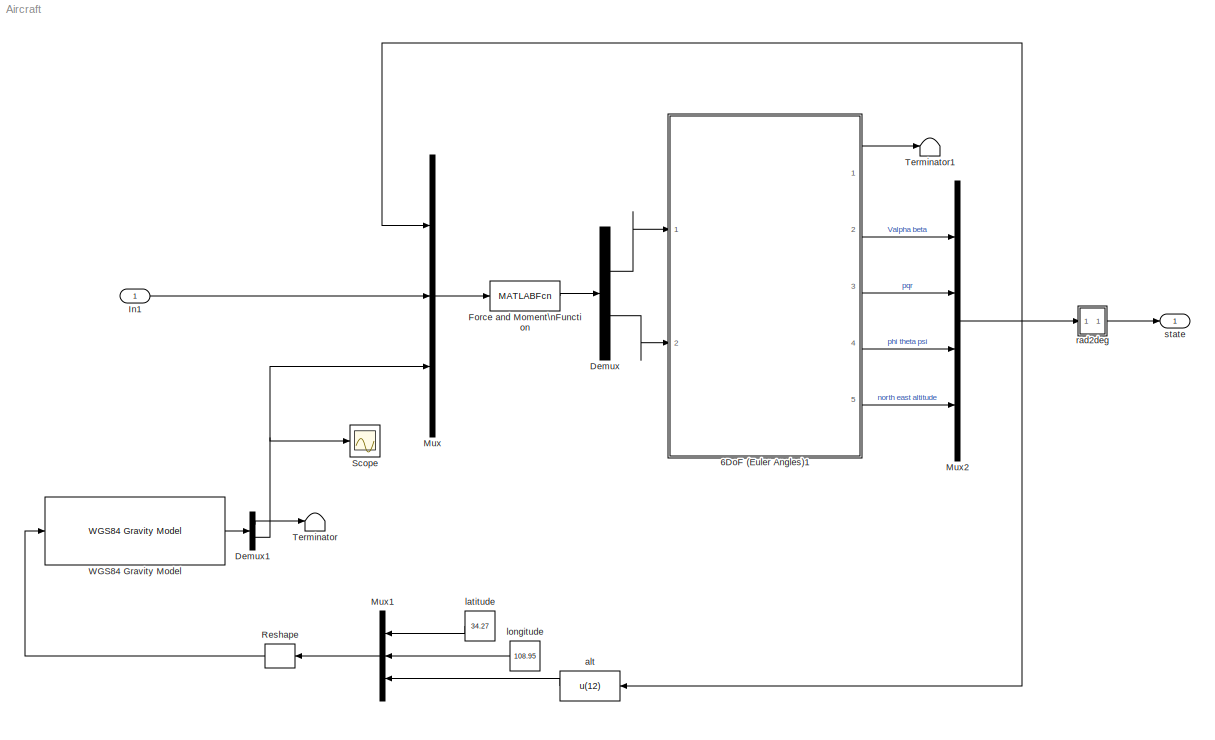
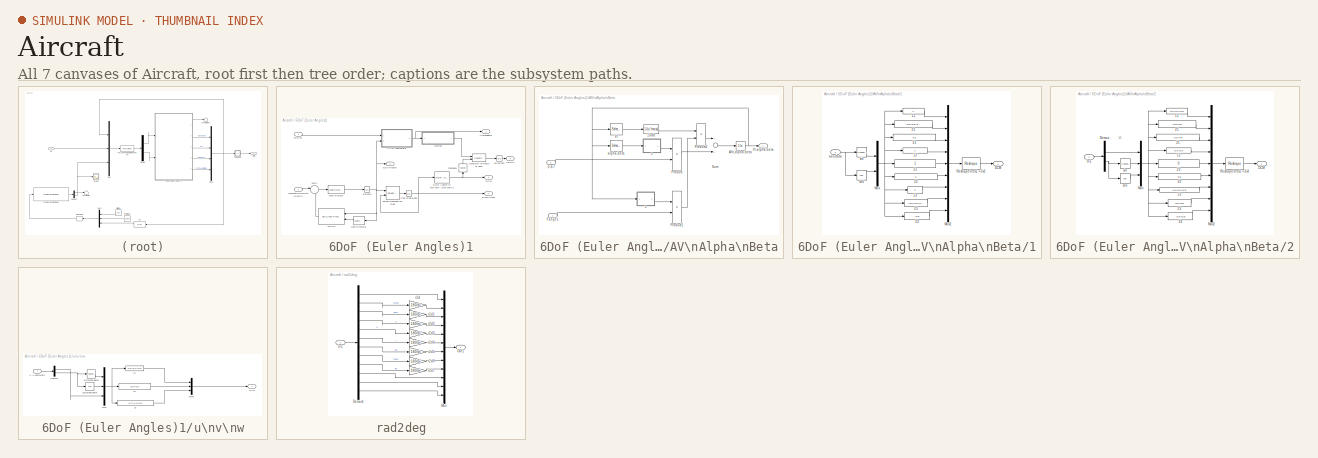
[diagram: thumbnail index - all 7 canvases of the model, root first then tree order]
MODEL Aircraft
KIND model
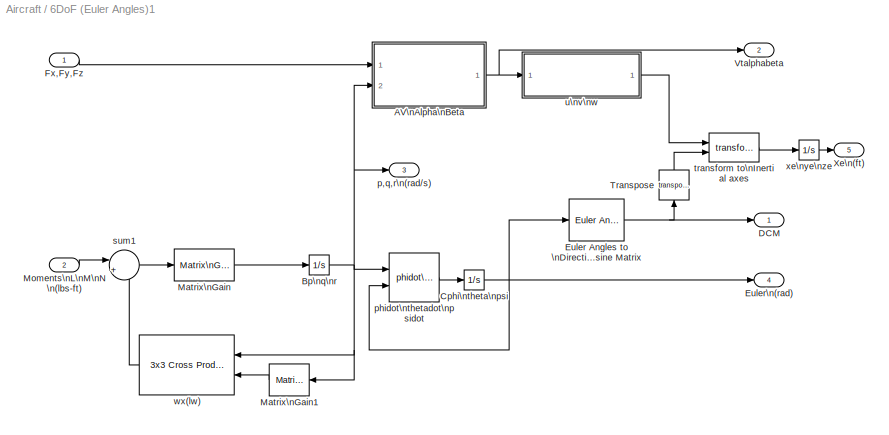
BLOCK [SubSystem] 6DoF (Euler Angles)1
  AncestorBlock = aerolib6dof/6DoF (Euler Angles)
  Ports = [2, 5]
  RequestExecContextInheritance = off
  SID = 90
  Variant = off
BLOCK [SubSystem] 6DoF (Euler Angles)1/AV\nAlpha\nBeta
  Ports = [2, 1]
  RequestExecContextInheritance = off
  SID = 90:3
  Variant = off
BLOCK [SubSystem] 6DoF (Euler Angles)1/AV\nAlpha\nBeta/1
  AncestorBlock = aerolibtransform/Euler Angles to \nDirection Cosine Matrix
  Ports = [1, 1]
  RequestExecContextInheritance = off
  SID = 90:6
  ShowPortLabels = none
  Variant = off
BLOCK [Fcn] 6DoF (Euler Angles)1/AV\nAlpha\nBeta/1//mVt
  Expr = 1/(u*mass)
  SID = 90:7
BLOCK [Fcn] 6DoF (Euler Angles)1/AV\nAlpha\nBeta/1/11
  Expr = 0
  SID = 90:6:2
BLOCK [Fcn] 6DoF (Euler Angles)1/AV\nAlpha\nBeta/1/12
  Expr = 0
  SID = 90:6:3
BLOCK [Fcn] 6DoF (Euler Angles)1/AV\nAlpha\nBeta/1/13
  Expr = 0
  SID = 90:6:4
BLOCK [Fcn] 6DoF (Euler Angles)1/AV\nAlpha\nBeta/1/21
  Expr = -u(2)*u(3)/u(4)
  SID = 90:6:5
BLOCK [Fcn] 6DoF (Euler Angles)1/AV\nAlpha\nBeta/1/22
  Expr = 1
  SID = 90:6:6
BLOCK [Fcn] 6DoF (Euler Angles)1/AV\nAlpha\nBeta/1/23
  Expr = -u(1)*u(2)/u(4)
  SID = 90:6:7
BLOCK [Fcn] 6DoF (Euler Angles)1/AV\nAlpha\nBeta/1/31
  Expr = u(1)
  SID = 90:6:8
BLOCK [Fcn] 6DoF (Euler Angles)1/AV\nAlpha\nBeta/1/32
  Expr = 0
  SID = 90:6:9
BLOCK [Fcn] 6DoF (Euler Angles)1/AV\nAlpha\nBeta/1/33
  Expr = -u(3)
  SID = 90:6:10
BLOCK [Outport] 6DoF (Euler Angles)1/AV\nAlpha\nBeta/1/DCM
  IconDisplay = Port number
  InitialOutput = 0
  SID = 90:6:16
BLOCK [Mux] 6DoF (Euler Angles)1/AV\nAlpha\nBeta/1/Mux
  DisplayOption = bar
  Inputs = 2
  Ports = [2, 1]
  SID = 90:6:11
BLOCK [Mux] 6DoF (Euler Angles)1/AV\nAlpha\nBeta/1/Mux2
  DisplayOption = bar
  Inputs = 9
  Ports = [9, 1]
  SID = 90:6:12
BLOCK [Reshape] 6DoF (Euler Angles)1/AV\nAlpha\nBeta/1/Reshape\n9x1->3x3
  OutputDimensionality = Customize
  OutputDimensions = [3,3]
  Ports = [1, 1]
  SID = 90:6:13
BLOCK [Inport] 6DoF (Euler Angles)1/AV\nAlpha\nBeta/1/aeodata
  IconDisplay = Port number
  SID = 90:6:1
BLOCK [Trigonometry] 6DoF (Euler Angles)1/AV\nAlpha\nBeta/1/cos
  Operator = cos
  Ports = [1, 1]
  SID = 90:6:14
BLOCK [Trigonometry] 6DoF (Euler Angles)1/AV\nAlpha\nBeta/1/sin
  Ports = [1, 1]
  SID = 90:6:15
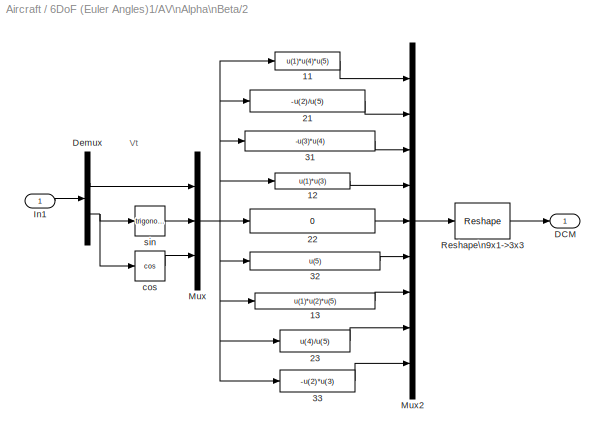
BLOCK [SubSystem] 6DoF (Euler Angles)1/AV\nAlpha\nBeta/2
  AncestorBlock = aerolibtransform/Euler Angles to \nDirection Cosine Matrix
  Ports = [1, 1]
  RequestExecContextInheritance = off
  SID = 90:8
  ShowPortLabels = none
  Variant = off
BLOCK [Fcn] 6DoF (Euler Angles)1/AV\nAlpha\nBeta/2/11
  Expr = u(1)*u(4)*u(5)
  SID = 90:8:2
BLOCK [Fcn] 6DoF (Euler Angles)1/AV\nAlpha\nBeta/2/12
  Expr = u(1)*u(3)
  SID = 90:8:3
BLOCK [Fcn] 6DoF (Euler Angles)1/AV\nAlpha\nBeta/2/13
  Expr = u(1)*u(2)*u(5)
  SID = 90:8:4
BLOCK [Fcn] 6DoF (Euler Angles)1/AV\nAlpha\nBeta/2/21
  Expr = -u(2)/u(5)
  SID = 90:8:5
BLOCK [Fcn] 6DoF (Euler Angles)1/AV\nAlpha\nBeta/2/22
  Expr = 0
  SID = 90:8:6
BLOCK [Fcn] 6DoF (Euler Angles)1/AV\nAlpha\nBeta/2/23
  Expr = u(4)/u(5)
  SID = 90:8:7
BLOCK [Fcn] 6DoF (Euler Angles)1/AV\nAlpha\nBeta/2/31
  Expr = -u(3)*u(4)
  SID = 90:8:8
BLOCK [Fcn] 6DoF (Euler Angles)1/AV\nAlpha\nBeta/2/32
  Expr = u(5)
  SID = 90:8:9
BLOCK [Fcn] 6DoF (Euler Angles)1/AV\nAlpha\nBeta/2/33
  Expr = -u(2)*u(3)
  SID = 90:8:10
BLOCK [Outport] 6DoF (Euler Angles)1/AV\nAlpha\nBeta/2/DCM
  IconDisplay = Port number
  InitialOutput = 0
  SID = 90:8:17
BLOCK [Demux] 6DoF (Euler Angles)1/AV\nAlpha\nBeta/2/Demux
  Outputs = [1 2]
  Ports = [1, 2]
  SID = 90:8:11
BLOCK [Inport] 6DoF (Euler Angles)1/AV\nAlpha\nBeta/2/In1
  IconDisplay = Port number
  SID = 90:8:1
BLOCK [Mux] 6DoF (Euler Angles)1/AV\nAlpha\nBeta/2/Mux
  DisplayOption = bar
  Inputs = [1 2 2]
  Ports = [3, 1]
  SID = 90:8:12
BLOCK [Mux] 6DoF (Euler Angles)1/AV\nAlpha\nBeta/2/Mux2
  DisplayOption = bar
  Inputs = 9
  Ports = [9, 1]
  SID = 90:8:13
BLOCK [Reshape] 6DoF (Euler Angles)1/AV\nAlpha\nBeta/2/Reshape\n9x1->3x3
  OutputDimensionality = Customize
  OutputDimensions = [3,3]
  Ports = [1, 1]
  SID = 90:8:14
BLOCK [Trigonometry] 6DoF (Euler Angles)1/AV\nAlpha\nBeta/2/cos
  Operator = cos
  Ports = [1, 1]
  SID = 90:8:15
BLOCK [Trigonometry] 6DoF (Euler Angles)1/AV\nAlpha\nBeta/2/sin
  Ports = [1, 1]
  SID = 90:8:16
BLOCK [Integrator] 6DoF (Euler Angles)1/AV\nAlpha\nBeta/AVt,alpha,beta
  InitialCondition = Vmw_0
  Ports = [1, 1]
  SID = 90:9
BLOCK [Inport] 6DoF (Euler Angles)1/AV\nAlpha\nBeta/Fx,Fy,Fz
  IconDisplay = Port number
  SID = 90:4
BLOCK [Product] 6DoF (Euler Angles)1/AV\nAlpha\nBeta/Product
  InputSameDT = off
  Multiplication = Matrix(*)
  Ports = [2, 1]
  RndMeth = Floor
  SID = 90:10
BLOCK [Product] 6DoF (Euler Angles)1/AV\nAlpha\nBeta/Product1
  InputSameDT = off
  Multiplication = Matrix(*)
  Ports = [2, 1]
  RndMeth = Floor
  SID = 90:11
BLOCK [Product] 6DoF (Euler Angles)1/AV\nAlpha\nBeta/Product2
  InputSameDT = off
  Ports = [2, 1]
  RndMeth = Floor
  SID = 90:12
BLOCK [Sum] 6DoF (Euler Angles)1/AV\nAlpha\nBeta/Sum
  InputSameDT = off
  OutDataTypeStr = Inherit: Inherit via internal rule
  Ports = [2, 1]
  SID = 90:13
BLOCK [Selector] 6DoF (Euler Angles)1/AV\nAlpha\nBeta/Vt
  IndexOptions = Index vector (dialog)
  Indices = [1]
  InputPortWidth = 3
  OutputSizes = 1
  Ports = [1, 1]
  SID = 90:14
BLOCK [Outport] 6DoF (Euler Angles)1/AV\nAlpha\nBeta/Vt,alpha,beta
  IconDisplay = Port number
  SID = 90:16
BLOCK [Selector] 6DoF (Euler Angles)1/AV\nAlpha\nBeta/alpha,beta
  IndexOptions = Index vector (dialog)
  Indices = [2 3]
  InputPortWidth = 3
  OutputSizes = 1
  Ports = [1, 1]
  SID = 90:15
BLOCK [Inport] 6DoF (Euler Angles)1/AV\nAlpha\nBeta/p,q,r
  IconDisplay = Port number
  Port = 2
  SID = 90:5
BLOCK [Integrator] 6DoF (Euler Angles)1/Bp\nq\nr
  InitialCondition = pm_0
  Ports = [1, 1]
  SID = 90:17
BLOCK [Integrator] 6DoF (Euler Angles)1/Cphi\ntheta\npsi
  InitialCondition = eul_0
  Ports = [1, 1]
  SID = 90:18
BLOCK [Outport] 6DoF (Euler Angles)1/DCM
  IconDisplay = Port number
  SID = 90:39
BLOCK [Reference] 6DoF (Euler Angles)1/Euler Angles to \nDirection Cosine Matrix  REF=aerolibobsolete/Euler Angles to \nDirection Cosine Matrix
  Ports = [1, 1]
  SID = 90:19
  SourceBlock = aerolibobsolete/Euler Angles to \nDirection Cosine Matrix
  SourceType = Euler2DCM
BLOCK [Outport] 6DoF (Euler Angles)1/Euler\n(rad)
  IconDisplay = Port number
  Port = 4
  SID = 90:42
BLOCK [Inport] 6DoF (Euler Angles)1/Fx,Fy,Fz
  IconDisplay = Port number
  SID = 90:1
BLOCK [Reference] 6DoF (Euler Angles)1/Matrix\nGain  REF=aerolib6dof/6DoF (Euler Angles)/Matrix\nGain
  K = inv(Inertia)
  Ports = [1, 1]
  SID = 90:20
  SourceBlock = aerolib6dof/6DoF (Euler Angles)/Matrix\nGain
  SourceType = Matrix Gain
BLOCK [Reference] 6DoF (Euler Angles)1/Matrix\nGain1  REF=aerolib6dof/6DoF (Euler Angles)/Matrix\nGain1
  K = Inertia
  Ports = [1, 1]
  SID = 90:21
  SourceBlock = aerolib6dof/6DoF (Euler Angles)/Matrix\nGain1
  SourceType = Matrix Gain
BLOCK [Inport] 6DoF (Euler Angles)1/Moments\nL\nM\nN\n(lbs-ft)
  IconDisplay = Port number
  Port = 2
  SID = 90:2
BLOCK [Math] 6DoF (Euler Angles)1/Transpose
  Operator = transpose
  Ports = [1, 1]
  SID = 90:22
BLOCK [Outport] 6DoF (Euler Angles)1/Vtalphabeta
  IconDisplay = Port number
  Port = 2
  SID = 90:40
BLOCK [Outport] 6DoF (Euler Angles)1/Xe\n(ft)
  IconDisplay = Port number
  Port = 5
  SID = 90:43
BLOCK [Outport] 6DoF (Euler Angles)1/p,q,r\n(rad//s)
  IconDisplay = Port number
  Port = 3
  SID = 90:41
BLOCK [Reference] 6DoF (Euler Angles)1/phidot\nthetadot\npsidot  REF=aerolib6dof/6DoF (Euler Angles)/phidot\nthetadot\npsidot
  Ports = [2, 1]
  SID = 90:23
  SourceBlock = aerolib6dof/6DoF (Euler Angles)/phidot\nthetadot\npsidot
  SourceType = SubSystem
BLOCK [Sum] 6DoF (Euler Angles)1/sum1
  IconShape = round
  Inputs = |+-
  Ports = [2, 1]
  SID = 90:24
BLOCK [Reference] 6DoF (Euler Angles)1/transform to\nInertial axes   REF=aerolib6dof/6DoF (Euler Angles)/transform to\nInertial axes 
  FunctionWithSeparateData = off
  GeneratePreprocessorConditionals = off
  Ports = [2, 1]
  SID = 90:25
  ShowPortLabels = none
  SourceBlock = aerolib6dof/6DoF (Euler Angles)/transform to\nInertial axes
  SourceType = Vector Transformation
  SystemSampleTime = -1
BLOCK [SubSystem] 6DoF (Euler Angles)1/u\nv\nw
  Ports = [1, 1]
  RequestExecContextInheritance = off
  SID = 90:26
  Variant = off
BLOCK [Fcn] 6DoF (Euler Angles)1/u\nv\nw/11
  Expr = u(3)*u(4)*u(5)
  SID = 90:28
BLOCK [Fcn] 6DoF (Euler Angles)1/u\nv\nw/21
  Expr = u(2)*u(5)
  SID = 90:29
BLOCK [Fcn] 6DoF (Euler Angles)1/u\nv\nw/31
  Expr = u(1)*u(4)*u(5)
  SID = 90:30
BLOCK [Demux] 6DoF (Euler Angles)1/u\nv\nw/Demux
  DisplayOption = bar
  Outputs = [1,2]
  Ports = [1, 2]
  SID = 90:31
BLOCK [Mux] 6DoF (Euler Angles)1/u\nv\nw/Mux
  DisplayOption = bar
  Inputs = 3
  Ports = [3, 1]
  SID = 90:32
BLOCK [Mux] 6DoF (Euler Angles)1/u\nv\nw/Mux1
  DisplayOption = bar
  Inputs = 3
  Ports = [3, 1]
  SID = 90:33
BLOCK [Inport] 6DoF (Euler Angles)1/u\nv\nw/V,Alpha,Beta
  IconDisplay = Port number
  SID = 90:27
BLOCK [Trigonometry] 6DoF (Euler Angles)1/u\nv\nw/cos(alpha,beta)
  Operator = cos
  Ports = [1, 1]
  SID = 90:34
BLOCK [Trigonometry] 6DoF (Euler Angles)1/u\nv\nw/sin(alpha,beta)
  Ports = [1, 1]
  SID = 90:35
BLOCK [Outport] 6DoF (Euler Angles)1/u\nv\nw/u,v,w
  IconDisplay = Port number
  SID = 90:36
BLOCK [Reference] 6DoF (Euler Angles)1/wx(lw)  REF=aerolibutil/3x3 Cross Product
  Ports = [2, 1]
  SID = 90:37
  SourceBlock = aerolibutil/3x3 Cross Product
  SourceType = CrossProduct
BLOCK [Integrator] 6DoF (Euler Angles)1/xe\nye\nze
  InitialCondition = xme_0
  Ports = [1, 1]
  SID = 90:38
BLOCK [Demux] Demux
  DisplayOption = bar
  Outputs = [3,3]
  Ports = [1, 2]
  SID = 101
BLOCK [Demux] Demux1
  DisplayOption = bar
  Outputs = 2
  Ports = [1, 2]
  SID = 38
BLOCK [MATLABFcn] Force and Moment\nFunction
  MATLABFcn = nlplant
  OutputDimensions = 6
  Ports = [1, 1]
  SID = 15
BLOCK [Inport] In1
  IconDisplay = Port number
  SID = 5
BLOCK [Mux] Mux
  DisplayOption = bar
  Inputs = [12,4,1]
  Ports = [3, 1]
  SID = 16
BLOCK [Mux] Mux1
  DisplayOption = bar
  Inputs = 3
  Ports = [3, 1]
  SID = 17
BLOCK [Mux] Mux2
  DisplayOption = bar
  Ports = [4, 1]
  SID = 102
BLOCK [Reshape] Reshape
  Ports = [1, 1]
  SID = 23
BLOCK [Scope] Scope
  Ports = [1]
  SID = 39
  ScopeSpecificationString = C++SS(StrPVP('Location','[188, 365, 512, 604]'),StrPVP('Open','off'),MxPVP('AxesTitles',24,'struct(''axes1'',''%<SignalLabel>'')'),StrPVP('ShowLegends','off'),StrPVP('LimitDataPoints','on'),StrPVP('DataFormat','Array'),StrPVP('Decimation','1'),StrPVP('BlockParamSampleInput','off'))
BLOCK [Terminator] Terminator
  SID = 40
BLOCK [Terminator] Terminator1
  SID = 104
BLOCK [Reference] WGS84 Gravity Model   REF=aerolibgravity2/WGS84 Gravity Model 
  Ports = [1, 1]
  SID = 19
  SourceBlock = aerolibgravity2/WGS84 Gravity Model
  SourceType = WGS84 Gravity Model 3D
  action = Warning
  day = 10
  jd_loc = off
  model = WGS84 Taylor Series
  month = October
  no_atmos = on
  no_centrifugal = on
  precessing = on
  units = English
  year = 2004
BLOCK [Fcn] alt
  Expr = u(12)
  SID = 27
BLOCK [Constant] latitude
  SID = 20
  Value = 34.27
BLOCK [Constant] longitude
  SID = 21
  Value = 108.95
BLOCK [SubSystem] rad2deg
  Ports = [1, 1]
  RequestExecContextInheritance = off
  SID = 105
  Variant = off
BLOCK [Demux] rad2deg/Demux1
  Outputs = 12
  Ports = [1, 12]
  SID = 107
BLOCK [Inport] rad2deg/In1
  IconDisplay = Port number
  SID = 106
BLOCK [Mux] rad2deg/Mux
  DisplayOption = bar
  Inputs = 12
  Ports = [12, 1]
  SID = 108
BLOCK [Outport] rad2deg/Out1
  IconDisplay = Port number
  SID = 117
BLOCK [Gain] rad2deg/r2d
  Gain = 180/pi
  SID = 109
BLOCK [Gain] rad2deg/r2d1
  Gain = 180/pi
  SID = 110
BLOCK [Gain] rad2deg/r2d2
  Gain = 180/pi
  SID = 111
BLOCK [Gain] rad2deg/r2d3
  Gain = 180/pi
  SID = 112
BLOCK [Gain] rad2deg/r2d4
  Gain = 180/pi
  SID = 113
BLOCK [Gain] rad2deg/r2d5
  Gain = 180/pi
  SID = 114
BLOCK [Gain] rad2deg/r2d6
  Gain = 180/pi
  SID = 115
BLOCK [Gain] rad2deg/r2d7
  Gain = 180/pi
  SID = 116
BLOCK [Outport] state
  IconDisplay = Port number
  SID = 4
ANNOTATION 6DoF (Euler Angles)1/AV\nAlpha\nBeta/2: Vt
LINE 6DoF (Euler Angles)1/AV\nAlpha\nBeta/1//mVt:1 -> 6DoF (Euler Angles)1/AV\nAlpha\nBeta/Product2:1
LINE 6DoF (Euler Angles)1/AV\nAlpha\nBeta/1/11:1 -> 6DoF (Euler Angles)1/AV\nAlpha\nBeta/1/Mux2:1
LINE 6DoF (Euler Angles)1/AV\nAlpha\nBeta/1/12:1 -> 6DoF (Euler Angles)1/AV\nAlpha\nBeta/1/Mux2:4
LINE 6DoF (Euler Angles)1/AV\nAlpha\nBeta/1/13:1 -> 6DoF (Euler Angles)1/AV\nAlpha\nBeta/1/Mux2:7
LINE 6DoF (Euler Angles)1/AV\nAlpha\nBeta/1/21:1 -> 6DoF (Euler Angles)1/AV\nAlpha\nBeta/1/Mux2:2
LINE 6DoF (Euler Angles)1/AV\nAlpha\nBeta/1/22:1 -> 6DoF (Euler Angles)1/AV\nAlpha\nBeta/1/Mux2:5
LINE 6DoF (Euler Angles)1/AV\nAlpha\nBeta/1/23:1 -> 6DoF (Euler Angles)1/AV\nAlpha\nBeta/1/Mux2:8
LINE 6DoF (Euler Angles)1/AV\nAlpha\nBeta/1/31:1 -> 6DoF (Euler Angles)1/AV\nAlpha\nBeta/1/Mux2:3
LINE 6DoF (Euler Angles)1/AV\nAlpha\nBeta/1/32:1 -> 6DoF (Euler Angles)1/AV\nAlpha\nBeta/1/Mux2:6
LINE 6DoF (Euler Angles)1/AV\nAlpha\nBeta/1/33:1 -> 6DoF (Euler Angles)1/AV\nAlpha\nBeta/1/Mux2:9
LINE 6DoF (Euler Angles)1/AV\nAlpha\nBeta/1/Mux2:1 -> 6DoF (Euler Angles)1/AV\nAlpha\nBeta/1/Reshape\n9x1->3x3:1
NET 6DoF (Euler Angles)1/AV\nAlpha\nBeta/1/Mux:1 -> 6DoF (Euler Angles)1/AV\nAlpha\nBeta/1/11:1, 6DoF (Euler Angles)1/AV\nAlpha\nBeta/1/12:1, 6DoF (Euler Angles)1/AV\nAlpha\nBeta/1/13:1, 6DoF (Euler Angles)1/AV\nAlpha\nBeta/1/21:1, 6DoF (Euler Angles)1/AV\nAlpha\nBeta/1/22:1, 6DoF (Euler Angles)1/AV\nAlpha\nBeta/1/23:1, 6DoF (Euler Angles)1/AV\nAlpha\nBeta/1/31:1, 6DoF (Euler Angles)1/AV\nAlpha\nBeta/1/32:1, 6DoF (Euler Angles)1/AV\nAlpha\nBeta/1/33:1
LINE 6DoF (Euler Angles)1/AV\nAlpha\nBeta/1/Reshape\n9x1->3x3:1 -> 6DoF (Euler Angles)1/AV\nAlpha\nBeta/1/DCM:1
NET 6DoF (Euler Angles)1/AV\nAlpha\nBeta/1/aeodata:1 -> 6DoF (Euler Angles)1/AV\nAlpha\nBeta/1/cos:1, 6DoF (Euler Angles)1/AV\nAlpha\nBeta/1/sin:1
LINE 6DoF (Euler Angles)1/AV\nAlpha\nBeta/1/cos:1 -> 6DoF (Euler Angles)1/AV\nAlpha\nBeta/1/Mux:2
LINE 6DoF (Euler Angles)1/AV\nAlpha\nBeta/1/sin:1 -> 6DoF (Euler Angles)1/AV\nAlpha\nBeta/1/Mux:1
LINE 6DoF (Euler Angles)1/AV\nAlpha\nBeta/1:1 -> 6DoF (Euler Angles)1/AV\nAlpha\nBeta/Product:1
LINE 6DoF (Euler Angles)1/AV\nAlpha\nBeta/2/11:1 -> 6DoF (Euler Angles)1/AV\nAlpha\nBeta/2/Mux2:1
LINE 6DoF (Euler Angles)1/AV\nAlpha\nBeta/2/12:1 -> 6DoF (Euler Angles)1/AV\nAlpha\nBeta/2/Mux2:4
LINE 6DoF (Euler Angles)1/AV\nAlpha\nBeta/2/13:1 -> 6DoF (Euler Angles)1/AV\nAlpha\nBeta/2/Mux2:7
LINE 6DoF (Euler Angles)1/AV\nAlpha\nBeta/2/21:1 -> 6DoF (Euler Angles)1/AV\nAlpha\nBeta/2/Mux2:2
LINE 6DoF (Euler Angles)1/AV\nAlpha\nBeta/2/22:1 -> 6DoF (Euler Angles)1/AV\nAlpha\nBeta/2/Mux2:5
LINE 6DoF (Euler Angles)1/AV\nAlpha\nBeta/2/23:1 -> 6DoF (Euler Angles)1/AV\nAlpha\nBeta/2/Mux2:8
LINE 6DoF (Euler Angles)1/AV\nAlpha\nBeta/2/31:1 -> 6DoF (Euler Angles)1/AV\nAlpha\nBeta/2/Mux2:3
LINE 6DoF (Euler Angles)1/AV\nAlpha\nBeta/2/32:1 -> 6DoF (Euler Angles)1/AV\nAlpha\nBeta/2/Mux2:6
LINE 6DoF (Euler Angles)1/AV\nAlpha\nBeta/2/33:1 -> 6DoF (Euler Angles)1/AV\nAlpha\nBeta/2/Mux2:9
LINE 6DoF (Euler Angles)1/AV\nAlpha\nBeta/2/Demux:1 -> 6DoF (Euler Angles)1/AV\nAlpha\nBeta/2/Mux:1
NET 6DoF (Euler Angles)1/AV\nAlpha\nBeta/2/Demux:2 -> 6DoF (Euler Angles)1/AV\nAlpha\nBeta/2/cos:1, 6DoF (Euler Angles)1/AV\nAlpha\nBeta/2/sin:1
LINE 6DoF (Euler Angles)1/AV\nAlpha\nBeta/2/In1:1 -> 6DoF (Euler Angles)1/AV\nAlpha\nBeta/2/Demux:1
LINE 6DoF (Euler Angles)1/AV\nAlpha\nBeta/2/Mux2:1 -> 6DoF (Euler Angles)1/AV\nAlpha\nBeta/2/Reshape\n9x1->3x3:1
NET 6DoF (Euler Angles)1/AV\nAlpha\nBeta/2/Mux:1 -> 6DoF (Euler Angles)1/AV\nAlpha\nBeta/2/11:1, 6DoF (Euler Angles)1/AV\nAlpha\nBeta/2/12:1, 6DoF (Euler Angles)1/AV\nAlpha\nBeta/2/13:1, 6DoF (Euler Angles)1/AV\nAlpha\nBeta/2/21:1, 6DoF (Euler Angles)1/AV\nAlpha\nBeta/2/22:1, 6DoF (Euler Angles)1/AV\nAlpha\nBeta/2/23:1, 6DoF (Euler Angles)1/AV\nAlpha\nBeta/2/31:1, 6DoF (Euler Angles)1/AV\nAlpha\nBeta/2/32:1, 6DoF (Euler Angles)1/AV\nAlpha\nBeta/2/33:1
LINE 6DoF (Euler Angles)1/AV\nAlpha\nBeta/2/Reshape\n9x1->3x3:1 -> 6DoF (Euler Angles)1/AV\nAlpha\nBeta/2/DCM:1
LINE 6DoF (Euler Angles)1/AV\nAlpha\nBeta/2/cos:1 -> 6DoF (Euler Angles)1/AV\nAlpha\nBeta/2/Mux:3
LINE 6DoF (Euler Angles)1/AV\nAlpha\nBeta/2/sin:1 -> 6DoF (Euler Angles)1/AV\nAlpha\nBeta/2/Mux:2
LINE 6DoF (Euler Angles)1/AV\nAlpha\nBeta/2:1 -> 6DoF (Euler Angles)1/AV\nAlpha\nBeta/Product1:1
NET 6DoF (Euler Angles)1/AV\nAlpha\nBeta/AVt,alpha,beta:1 -> 6DoF (Euler Angles)1/AV\nAlpha\nBeta/2:1, 6DoF (Euler Angles)1/AV\nAlpha\nBeta/Vt,alpha,beta:1, 6DoF (Euler Angles)1/AV\nAlpha\nBeta/Vt:1, 6DoF (Euler Angles)1/AV\nAlpha\nBeta/alpha,beta:1
LINE 6DoF (Euler Angles)1/AV\nAlpha\nBeta/Fx,Fy,Fz:1 -> 6DoF (Euler Angles)1/AV\nAlpha\nBeta/Product1:2
LINE 6DoF (Euler Angles)1/AV\nAlpha\nBeta/Product1:1 -> 6DoF (Euler Angles)1/AV\nAlpha\nBeta/Product2:2
LINE 6DoF (Euler Angles)1/AV\nAlpha\nBeta/Product2:1 -> 6DoF (Euler Angles)1/AV\nAlpha\nBeta/Sum:1
LINE 6DoF (Euler Angles)1/AV\nAlpha\nBeta/Product:1 -> 6DoF (Euler Angles)1/AV\nAlpha\nBeta/Sum:2
LINE 6DoF (Euler Angles)1/AV\nAlpha\nBeta/Sum:1 -> 6DoF (Euler Angles)1/AV\nAlpha\nBeta/AVt,alpha,beta:1
LINE 6DoF (Euler Angles)1/AV\nAlpha\nBeta/Vt:1 -> 6DoF (Euler Angles)1/AV\nAlpha\nBeta/1//mVt:1
LINE 6DoF (Euler Angles)1/AV\nAlpha\nBeta/alpha,beta:1 -> 6DoF (Euler Angles)1/AV\nAlpha\nBeta/1:1
LINE 6DoF (Euler Angles)1/AV\nAlpha\nBeta/p,q,r:1 -> 6DoF (Euler Angles)1/AV\nAlpha\nBeta/Product:2
NET 6DoF (Euler Angles)1/AV\nAlpha\nBeta:1 -> 6DoF (Euler Angles)1/Vtalphabeta:1, 6DoF (Euler Angles)1/u\nv\nw:1
NET 6DoF (Euler Angles)1/Bp\nq\nr:1 -> 6DoF (Euler Angles)1/AV\nAlpha\nBeta:2, 6DoF (Euler Angles)1/Matrix\nGain1:1, 6DoF (Euler Angles)1/p,q,r\n(rad//s):1, 6DoF (Euler Angles)1/phidot\nthetadot\npsidot:1, 6DoF (Euler Angles)1/wx(lw):1
NET 6DoF (Euler Angles)1/Cphi\ntheta\npsi:1 -> 6DoF (Euler Angles)1/Euler Angles to \nDirection Cosine Matrix:1, 6DoF (Euler Angles)1/Euler\n(rad):1, 6DoF (Euler Angles)1/phidot\nthetadot\npsidot:2
NET 6DoF (Euler Angles)1/Euler Angles to \nDirection Cosine Matrix:1 -> 6DoF (Euler Angles)1/DCM:1, 6DoF (Euler Angles)1/Transpose:1
LINE 6DoF (Euler Angles)1/Fx,Fy,Fz:1 -> 6DoF (Euler Angles)1/AV\nAlpha\nBeta:1
LINE 6DoF (Euler Angles)1/Matrix\nGain1:1 -> 6DoF (Euler Angles)1/wx(lw):2
LINE 6DoF (Euler Angles)1/Matrix\nGain:1 -> 6DoF (Euler Angles)1/Bp\nq\nr:1
LINE 6DoF (Euler Angles)1/Moments\nL\nM\nN\n(lbs-ft):1 -> 6DoF (Euler Angles)1/sum1:1
LINE 6DoF (Euler Angles)1/Transpose:1 -> 6DoF (Euler Angles)1/transform to\nInertial axes :2
LINE 6DoF (Euler Angles)1/phidot\nthetadot\npsidot:1 -> 6DoF (Euler Angles)1/Cphi\ntheta\npsi:1
LINE 6DoF (Euler Angles)1/sum1:1 -> 6DoF (Euler Angles)1/Matrix\nGain:1
LINE 6DoF (Euler Angles)1/transform to\nInertial axes :1 -> 6DoF (Euler Angles)1/xe\nye\nze:1
LINE 6DoF (Euler Angles)1/u\nv\nw/11:1 -> 6DoF (Euler Angles)1/u\nv\nw/Mux1:1
LINE 6DoF (Euler Angles)1/u\nv\nw/21:1 -> 6DoF (Euler Angles)1/u\nv\nw/Mux1:2
LINE 6DoF (Euler Angles)1/u\nv\nw/31:1 -> 6DoF (Euler Angles)1/u\nv\nw/Mux1:3
LINE 6DoF (Euler Angles)1/u\nv\nw/Demux:1 -> 6DoF (Euler Angles)1/u\nv\nw/Mux:3
NET 6DoF (Euler Angles)1/u\nv\nw/Demux:2 -> 6DoF (Euler Angles)1/u\nv\nw/cos(alpha,beta):1, 6DoF (Euler Angles)1/u\nv\nw/sin(alpha,beta):1
LINE 6DoF (Euler Angles)1/u\nv\nw/Mux1:1 -> 6DoF (Euler Angles)1/u\nv\nw/u,v,w:1
NET 6DoF (Euler Angles)1/u\nv\nw/Mux:1 -> 6DoF (Euler Angles)1/u\nv\nw/11:1, 6DoF (Euler Angles)1/u\nv\nw/21:1, 6DoF (Euler Angles)1/u\nv\nw/31:1
LINE 6DoF (Euler Angles)1/u\nv\nw/V,Alpha,Beta:1 -> 6DoF (Euler Angles)1/u\nv\nw/Demux:1
LINE 6DoF (Euler Angles)1/u\nv\nw/cos(alpha,beta):1 -> 6DoF (Euler Angles)1/u\nv\nw/Mux:2
LINE 6DoF (Euler Angles)1/u\nv\nw/sin(alpha,beta):1 -> 6DoF (Euler Angles)1/u\nv\nw/Mux:1
LINE 6DoF (Euler Angles)1/u\nv\nw:1 -> 6DoF (Euler Angles)1/transform to\nInertial axes :1
LINE 6DoF (Euler Angles)1/wx(lw):1 -> 6DoF (Euler Angles)1/sum1:2
LINE 6DoF (Euler Angles)1/xe\nye\nze:1 -> 6DoF (Euler Angles)1/Xe\n(ft):1
LINE 6DoF (Euler Angles)1:1 -> Terminator1:1
LINE 6DoF (Euler Angles)1:2 -> Mux2:1
LINE 6DoF (Euler Angles)1:3 -> Mux2:2
LINE 6DoF (Euler Angles)1:4 -> Mux2:3
LINE 6DoF (Euler Angles)1:5 -> Mux2:4
LINE Demux1:1 -> Terminator:1
NET Demux1:2 -> Mux:3, Scope:1
LINE Demux:1 -> 6DoF (Euler Angles)1:1
LINE Demux:2 -> 6DoF (Euler Angles)1:2
LINE Force and Moment\nFunction:1 -> Demux:1
LINE In1:1 -> Mux:2
LINE Mux1:1 -> Reshape:1
NET Mux2:1 -> Mux:1, alt:1, rad2deg:1
LINE Mux:1 -> Force and Moment\nFunction:1
LINE Reshape:1 -> WGS84 Gravity Model :1
LINE WGS84 Gravity Model :1 -> Demux1:1
LINE alt:1 -> Mux1:3
LINE latitude:1 -> Mux1:1
LINE longitude:1 -> Mux1:2
LINE rad2deg/Demux1:1 -> rad2deg/Mux:1
LINE rad2deg/Demux1:10 -> rad2deg/Mux:10
LINE rad2deg/Demux1:11 -> rad2deg/Mux:11
LINE rad2deg/Demux1:12 -> rad2deg/Mux:12
LINE rad2deg/Demux1:2 -> rad2deg/r2d:1
LINE rad2deg/Demux1:3 -> rad2deg/r2d1:1
LINE rad2deg/Demux1:4 -> rad2deg/r2d2:1
LINE rad2deg/Demux1:5 -> rad2deg/r2d3:1
LINE rad2deg/Demux1:6 -> rad2deg/r2d4:1
LINE rad2deg/Demux1:7 -> rad2deg/r2d5:1
LINE rad2deg/Demux1:8 -> rad2deg/r2d6:1
LINE rad2deg/Demux1:9 -> rad2deg/r2d7:1
LINE rad2deg/In1:1 -> rad2deg/Demux1:1
LINE rad2deg/Mux:1 -> rad2deg/Out1:1
LINE rad2deg/r2d1:1 -> rad2deg/Mux:3
LINE rad2deg/r2d2:1 -> rad2deg/Mux:4
LINE rad2deg/r2d3:1 -> rad2deg/Mux:5
LINE rad2deg/r2d4:1 -> rad2deg/Mux:6
LINE rad2deg/r2d5:1 -> rad2deg/Mux:7
LINE rad2deg/r2d6:1 -> rad2deg/Mux:8
LINE rad2deg/r2d7:1 -> rad2deg/Mux:9
LINE rad2deg/r2d:1 -> rad2deg/Mux:2
LINE rad2deg:1 -> state:1
note: NET lines group one-source signal fan-out (src -> all destinations, sorted); 1:1 wires keep LINE
